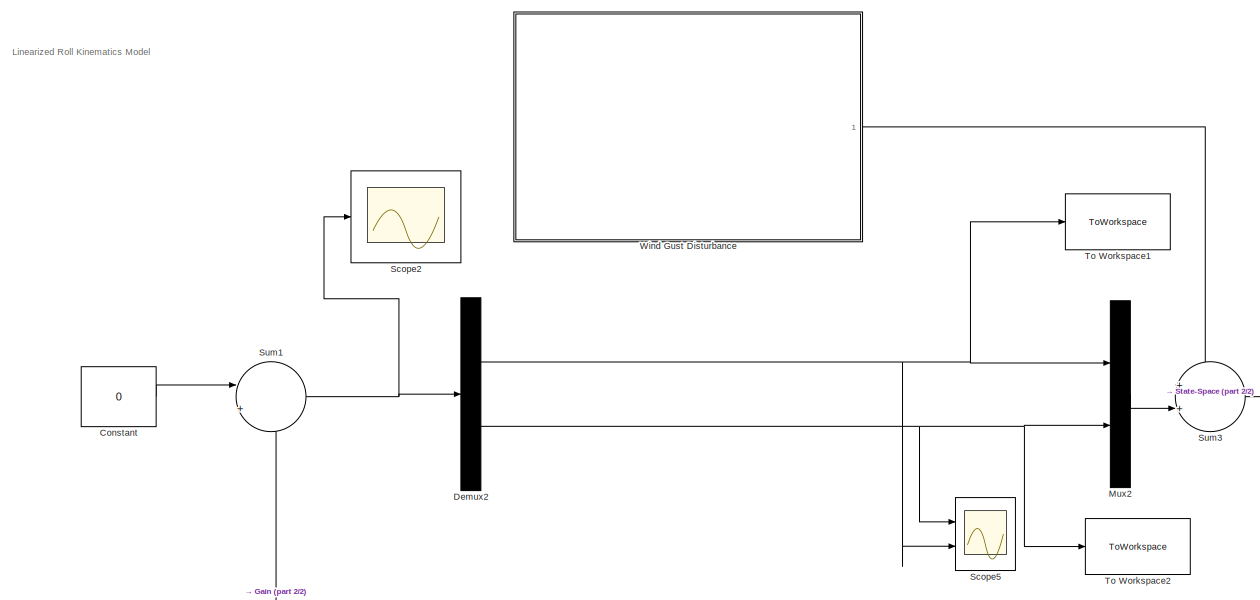
[diagram: root canvas - part 1/2, central region]
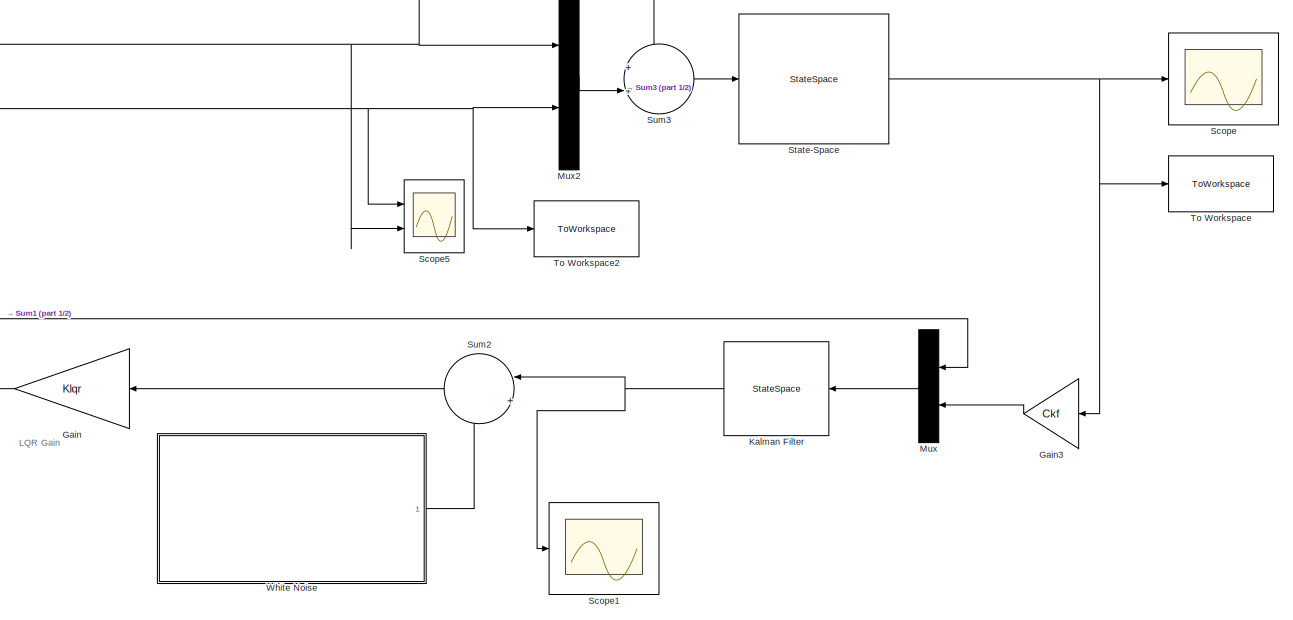
[diagram: root canvas - part 2/2, bottom center region]
MODEL slx_98e483a916f5
KIND model
CONFIG AbsTol = auto
CONFIG EnableMultiTasking = off
CONFIG FixedStep = auto
CONFIG MaxStep = auto
CONFIG MinStep = auto
CONFIG RelTol = 1e-8
CONFIG SampleTimeConstraint = Unconstrained
CONFIG SolverName = VariableStepAuto
CONFIG StartTime = 0.0
CONFIG StopTime = 60
BLOCK [Constant] Constant
  Value = 0
BLOCK [Demux] Demux2
  Outputs = 2
  Ports = [1, 2]
BLOCK [Gain] Gain
  Gain = Klqr
  Multiplication = Matrix(K*u)
BLOCK [Gain] Gain3
  Gain = Ckf
  Multiplication = Matrix(K*u)
BLOCK [StateSpace] Kalman Filter
  A = sysKF.A
  B = sysKF.B
  C = sysKF.C
  D = sysKF.D
  InitialCondition = 0
  Ports = [1, 1]
BLOCK [Mux] Mux
  DisplayOption = bar
  Inputs = 2
  Ports = [2, 1]
BLOCK [Mux] Mux2
  DisplayOption = bar
  Inputs = 2
  Ports = [2, 1]
BLOCK [Scope] Scope
  Floating = off
  NumInputPorts = 1
  Ports = [1]
  ScopeSpecificationString = Simulink.scopes.TimeScopeBlockCfg('CurrentConfiguration', extmgr.ConfigurationSet(extmgr.Configuration('Core','General UI',true),extmgr.Configuration('Core','Source UI',true),extmgr.Configuration('Sources','WiredSimulink',true),extmgr.Configuration('Visuals','Time Domain',true,'SerializedDisplays',{struct('MinYLimReal','-2.57984','MaxYLimReal','3.52957','YLabelReal','','MinYLimMag','0.00000','MaxY...<+1482ch>
BLOCK [Scope] Scope1
  Floating = off
  NumInputPorts = 1
  Ports = [1]
  ScopeSpecificationString = Simulink.scopes.TimeScopeBlockCfg('CurrentConfiguration', extmgr.ConfigurationSet(extmgr.Configuration('Core','General UI',true),extmgr.Configuration('Core','Source UI',true),extmgr.Configuration('Sources','WiredSimulink',true,'DataLoggingVariableName','ScopeData1'),extmgr.Configuration('Visuals','Time Domain',true,'SerializedDisplays',{struct('MinYLimReal','-3.01202','MaxYLimReal','7.68964','YLab...<+1483ch>
BLOCK [Scope] Scope2
  Floating = off
  NumInputPorts = 1
  Ports = [1]
  ScopeSpecificationString = Simulink.scopes.TimeScopeBlockCfg('CurrentConfiguration', extmgr.ConfigurationSet(extmgr.Configuration('Core','General UI',true),extmgr.Configuration('Core','Source UI',true),extmgr.Configuration('Sources','WiredSimulink',true,'DataLoggingVariableName','ScopeData2'),extmgr.Configuration('Visuals','Time Domain',true,'SerializedDisplays',{struct('MinYLimReal','-37910.22617','MaxYLimReal','39515.9329...<+1469ch>
BLOCK [Scope] Scope5
  Floating = off
  NumInputPorts = 2
  Ports = [2]
  ScopeSpecificationString = Simulink.scopes.TimeScopeBlockCfg('CurrentConfiguration', extmgr.ConfigurationSet(extmgr.Configuration('Core','General UI',true),extmgr.Configuration('Core','Source UI',true),extmgr.Configuration('Sources','WiredSimulink',true,'DataLoggingVariableName','ScopeData5'),extmgr.Configuration('Visuals','Time Domain',true,'SerializedDisplays',{struct('MinYLimReal','-30948.77972','MaxYLimReal','-7814.8334...<+1477ch>
BLOCK [StateSpace] State-Space
  A = sys.A
  B = sys.B
  C = sys.C
  D = sys.D
  InitialCondition = 0
  Ports = [1, 1]
BLOCK [Sum] Sum1
  Inputs = |+-
  Ports = [2, 1]
BLOCK [Sum] Sum2
  Inputs = |++
  Ports = [2, 1]
BLOCK [Sum] Sum3
  Inputs = ++|
  Ports = [2, 1]
BLOCK [ToWorkspace] To Workspace
  FixptAsFi = on
  MaxDataPoints = inf
  Ports = [1]
  SampleTime = -1
  SaveFormat = Structure With Time
  VariableName = xstates
BLOCK [ToWorkspace] To Workspace1
  FixptAsFi = on
  MaxDataPoints = inf
  Ports = [1]
  SampleTime = -1
  SaveFormat = Structure With Time
  VariableName = Fleft
BLOCK [ToWorkspace] To Workspace2
  FixptAsFi = on
  MaxDataPoints = inf
  Ports = [1]
  SampleTime = -1
  SaveFormat = Structure With Time
  VariableName = Fright
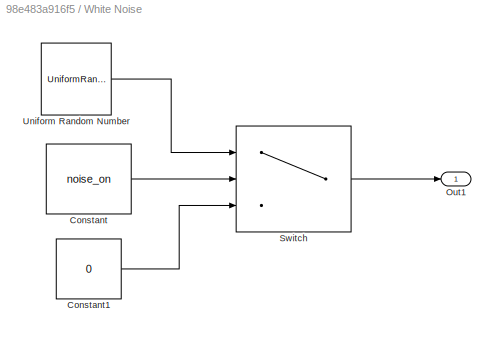
BLOCK [SubSystem] White Noise
  Ports = [0, 1]
  RequestExecContextInheritance = off
BLOCK [Constant] White Noise/Constant
  Value = noise_on
BLOCK [Constant] White Noise/Constant1
  Value = 0
BLOCK [Outport] White Noise/Out1
BLOCK [Switch] White Noise/Switch
  Criteria = u2 > Threshold
  InputSameDT = off
  SaturateOnIntegerOverflow = off
BLOCK [UniformRandomNumber] White Noise/Uniform Random Number
  Maximum = 0.1
  Minimum = -0.1
  SampleTime = 0.1
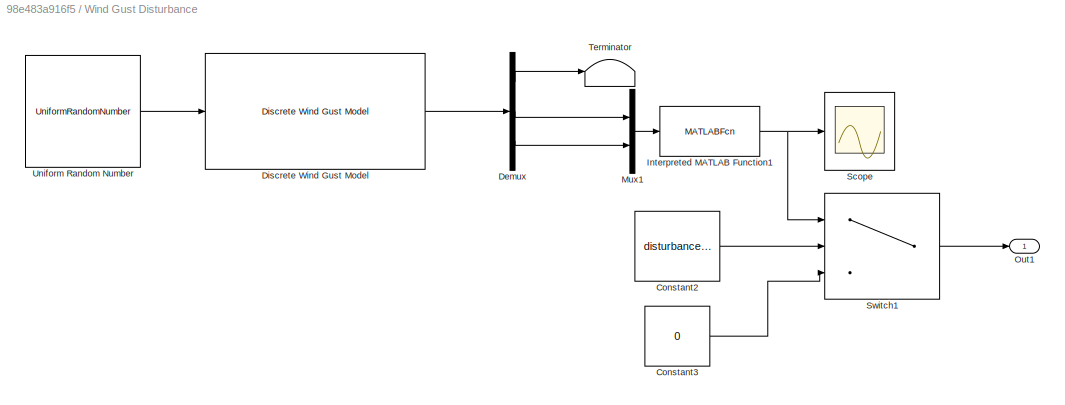
BLOCK [SubSystem] Wind Gust Disturbance
  Ports = [0, 1]
  RequestExecContextInheritance = off
BLOCK [Constant] Wind Gust Disturbance/Constant2
  Value = disturbance_on
BLOCK [Constant] Wind Gust Disturbance/Constant3
  Value = 0
BLOCK [Demux] Wind Gust Disturbance/Demux
  Outputs = 3
  Ports = [1, 3]
BLOCK [Reference] Wind Gust Disturbance/Discrete Wind Gust Model  REF=aerolibwind2/Discrete Wind Gust Model
  Ports = [1, 1]
  SourceBlock = aerolibwind2/Discrete Wind Gust Model
  SourceProductBaseCode = AE
  SourceType = Discrete Wind Gust Model
BLOCK [MATLABFcn] Wind Gust Disturbance/Interpreted MATLAB Function1
  MATLABFcn = sqrt(u(1)^2 + u(2)^2)
  Ports = [1, 1]
BLOCK [Mux] Wind Gust Disturbance/Mux1
  DisplayOption = bar
  Inputs = 2
  Ports = [2, 1]
BLOCK [Outport] Wind Gust Disturbance/Out1
BLOCK [Scope] Wind Gust Disturbance/Scope
  Floating = off
  NumInputPorts = 1
  Ports = [1]
  ScopeSpecificationString = Simulink.scopes.TimeScopeBlockCfg('CurrentConfiguration', extmgr.ConfigurationSet(extmgr.Configuration('Core','General UI',true),extmgr.Configuration('Core','Source UI',true),extmgr.Configuration('Sources','WiredSimulink',true),extmgr.Configuration('Visuals','Time Domain',true,'SerializedDisplays',{struct('MinYLimReal','-1.76568','MaxYLimReal','15.89111','YLabelReal','','MinYLimMag','0.00000','Max...<+1379ch>
BLOCK [Switch] Wind Gust Disturbance/Switch1
  Criteria = u2 > Threshold
  InputSameDT = off
  SaturateOnIntegerOverflow = off
BLOCK [Terminator] Wind Gust Disturbance/Terminator
BLOCK [UniformRandomNumber] Wind Gust Disturbance/Uniform Random Number
  Maximum = Vwind_ul
  Minimum = Vwind_ll
  SampleTime = 0.65
  Seed = 1
ANNOTATION (root): LQR Gain
ANNOTATION (root): Linearized Roll Kinematics Model
LINE Constant:1 -> Sum1:1
NET Demux2:1 -> Mux2:1, Scope5:2, To Workspace1:1
NET Demux2:2 -> Mux2:2, Scope5:1, To Workspace2:1
LINE Gain3:1 -> Mux:2
NET Gain:1 -> Mux:1, Sum1:2
NET Kalman Filter:1 -> Scope1:1, Sum2:1
LINE Mux2:1 -> Sum3:2
LINE Mux:1 -> Kalman Filter:1
NET State-Space:1 -> Gain3:1, Scope:1, To Workspace:1
NET Sum1:1 -> Demux2:1, Scope2:1
LINE Sum2:1 -> Gain:1
LINE Sum3:1 -> State-Space:1
LINE White Noise/Constant1:1 -> White Noise/Switch:3
LINE White Noise/Constant:1 -> White Noise/Switch:2
LINE White Noise/Switch:1 -> White Noise/Out1:1
LINE White Noise/Uniform Random Number:1 -> White Noise/Switch:1
LINE White Noise:1 -> Sum2:2
LINE Wind Gust Disturbance/Constant2:1 -> Wind Gust Disturbance/Switch1:2
LINE Wind Gust Disturbance/Constant3:1 -> Wind Gust Disturbance/Switch1:3
LINE Wind Gust Disturbance/Demux:1 -> Wind Gust Disturbance/Terminator:1
LINE Wind Gust Disturbance/Demux:2 -> Wind Gust Disturbance/Mux1:1
LINE Wind Gust Disturbance/Demux:3 -> Wind Gust Disturbance/Mux1:2
LINE Wind Gust Disturbance/Discrete Wind Gust Model:1 -> Wind Gust Disturbance/Demux:1
NET Wind Gust Disturbance/Interpreted MATLAB Function1:1 -> Wind Gust Disturbance/Scope:1, Wind Gust Disturbance/Switch1:1
LINE Wind Gust Disturbance/Mux1:1 -> Wind Gust Disturbance/Interpreted MATLAB Function1:1
LINE Wind Gust Disturbance/Switch1:1 -> Wind Gust Disturbance/Out1:1
LINE Wind Gust Disturbance/Uniform Random Number:1 -> Wind Gust Disturbance/Discrete Wind Gust Model:1
LINE Wind Gust Disturbance:1 -> Sum3:1
note: NET lines group one-source signal fan-out (src -> all destinations, sorted); 1:1 wires keep LINE
